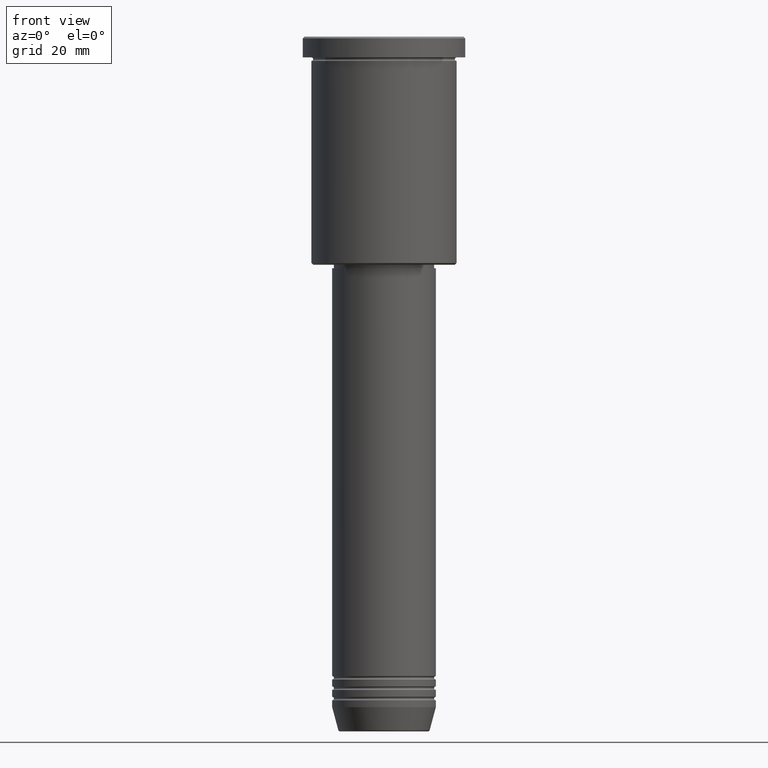
[diagram: clean part render]
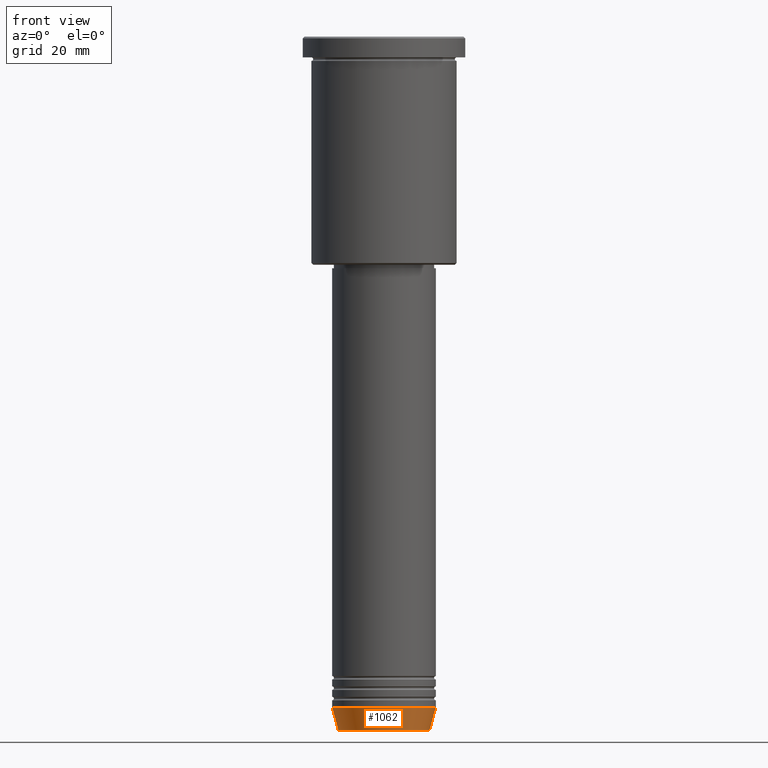
[diagram: same view with one face highlighted and labeled with its STEP entity id]
A machine part, front view. The second image highlights one B-rep face of the part: STEP entity #1062.
In plain terms, the highlighted conical surface has half-angle 15 deg.
Its self-contained STEP definition (entity closure, byte-faithful):
#5 = CARTESIAN_POINT ( 'NONE',  ( -13.22365507213719305, 1.728200442216588583E-15, -200.6294095225512706 ) ) ;
#44 = CIRCLE ( 'NONE', #154, 13.22365507213719305 ) ;
#46 = DIRECTION ( 'NONE',  ( -0.000000000000000000, -0.000000000000000000, 1.000000000000000000 ) ) ;
#47 = ORIENTED_EDGE ( 'NONE', *, *, #62, .T. ) ;
#62 = EDGE_CURVE ( 'NONE', #466, #387, #1084, .T. ) ;
#154 = AXIS2_PLACEMENT_3D ( 'NONE', #680, #298, #854 ) ;
#170 = ORIENTED_EDGE ( 'NONE', *, *, #396, .F. ) ;
#180 = CARTESIAN_POINT ( 'NONE',  ( -15.00000000000000000, 1.836970198721029589E-15, -194.0000000000000284 ) ) ;
#223 = EDGE_CURVE ( 'NONE', #621, #466, #44, .T. ) ;
#250 = CONICAL_SURFACE ( 'NONE', #365, 15.00000000000000000, 0.2617993877991500740 ) ;
#298 = DIRECTION ( 'NONE',  ( -0.000000000000000000, -0.000000000000000000, 1.000000000000000000 ) ) ;
#316 = CARTESIAN_POINT ( 'NONE',  ( 13.22365507213719305, 0.000000000000000000, -200.6294095225512706 ) ) ;
#336 = DIRECTION ( 'NONE',  ( -0.000000000000000000, -0.000000000000000000, 1.000000000000000000 ) ) ;
#365 = AXIS2_PLACEMENT_3D ( 'NONE', #818, #336, #1001 ) ;
#379 = EDGE_CURVE ( 'NONE', #621, #524, #668, .T. ) ;
#387 = VERTEX_POINT ( 'NONE', #1157 ) ;
#396 = EDGE_CURVE ( 'NONE', #524, #387, #973, .T. ) ;
#403 = AXIS2_PLACEMENT_3D ( 'NONE', #967, #46, #803 ) ;
#466 = VERTEX_POINT ( 'NONE', #316 ) ;
#524 = VERTEX_POINT ( 'NONE', #180 ) ;
#529 = ORIENTED_EDGE ( 'NONE', *, *, #223, .T. ) ;
#621 = VERTEX_POINT ( 'NONE', #5 ) ;
#636 = VECTOR ( 'NONE', #716, 1000.000000000000000 ) ;
#668 = LINE ( 'NONE', #757, #693 ) ;
#680 = CARTESIAN_POINT ( 'NONE',  ( 0.000000000000000000, 0.000000000000000000, -200.6294095225512706 ) ) ;
#693 = VECTOR ( 'NONE', #1028, 1000.000000000000000 ) ;
#716 = DIRECTION ( 'NONE',  ( 0.2588190451025213501, 0.000000000000000000, 0.9659258262890680902 ) ) ;
#757 = CARTESIAN_POINT ( 'NONE',  ( -15.00000000000000000, 1.836970198721029589E-15, -194.0000000000000284 ) ) ;
#803 = DIRECTION ( 'NONE',  ( 1.000000000000000000, 0.000000000000000000, 0.000000000000000000 ) ) ;
#818 = CARTESIAN_POINT ( 'NONE',  ( 0.000000000000000000, 0.000000000000000000, -194.0000000000000284 ) ) ;
#854 = DIRECTION ( 'NONE',  ( 1.000000000000000000, 0.000000000000000000, 0.000000000000000000 ) ) ;
#933 = ORIENTED_EDGE ( 'NONE', *, *, #379, .F. ) ;
#967 = CARTESIAN_POINT ( 'NONE',  ( 0.000000000000000000, 0.000000000000000000, -194.0000000000000284 ) ) ;
#973 = CIRCLE ( 'NONE', #403, 15.00000000000000000 ) ;
#1001 = DIRECTION ( 'NONE',  ( 1.000000000000000000, 0.000000000000000000, 0.000000000000000000 ) ) ;
#1028 = DIRECTION ( 'NONE',  ( -0.2588190451025213501, 3.169619151431772337E-17, 0.9659258262890680902 ) ) ;
#1047 = EDGE_LOOP ( 'NONE', ( #933, #529, #47, #170 ) ) ;
#1062 = ADVANCED_FACE ( 'NONE', ( #1071 ), #250, .T. ) ;
#1071 = FACE_OUTER_BOUND ( 'NONE', #1047, .T. ) ;
#1084 = LINE ( 'NONE', #1164, #636 ) ;
#1157 = CARTESIAN_POINT ( 'NONE',  ( 15.00000000000000000, 0.000000000000000000, -194.0000000000000284 ) ) ;
#1164 = CARTESIAN_POINT ( 'NONE',  ( 15.00000000000000000, 0.000000000000000000, -194.0000000000000284 ) ) ;